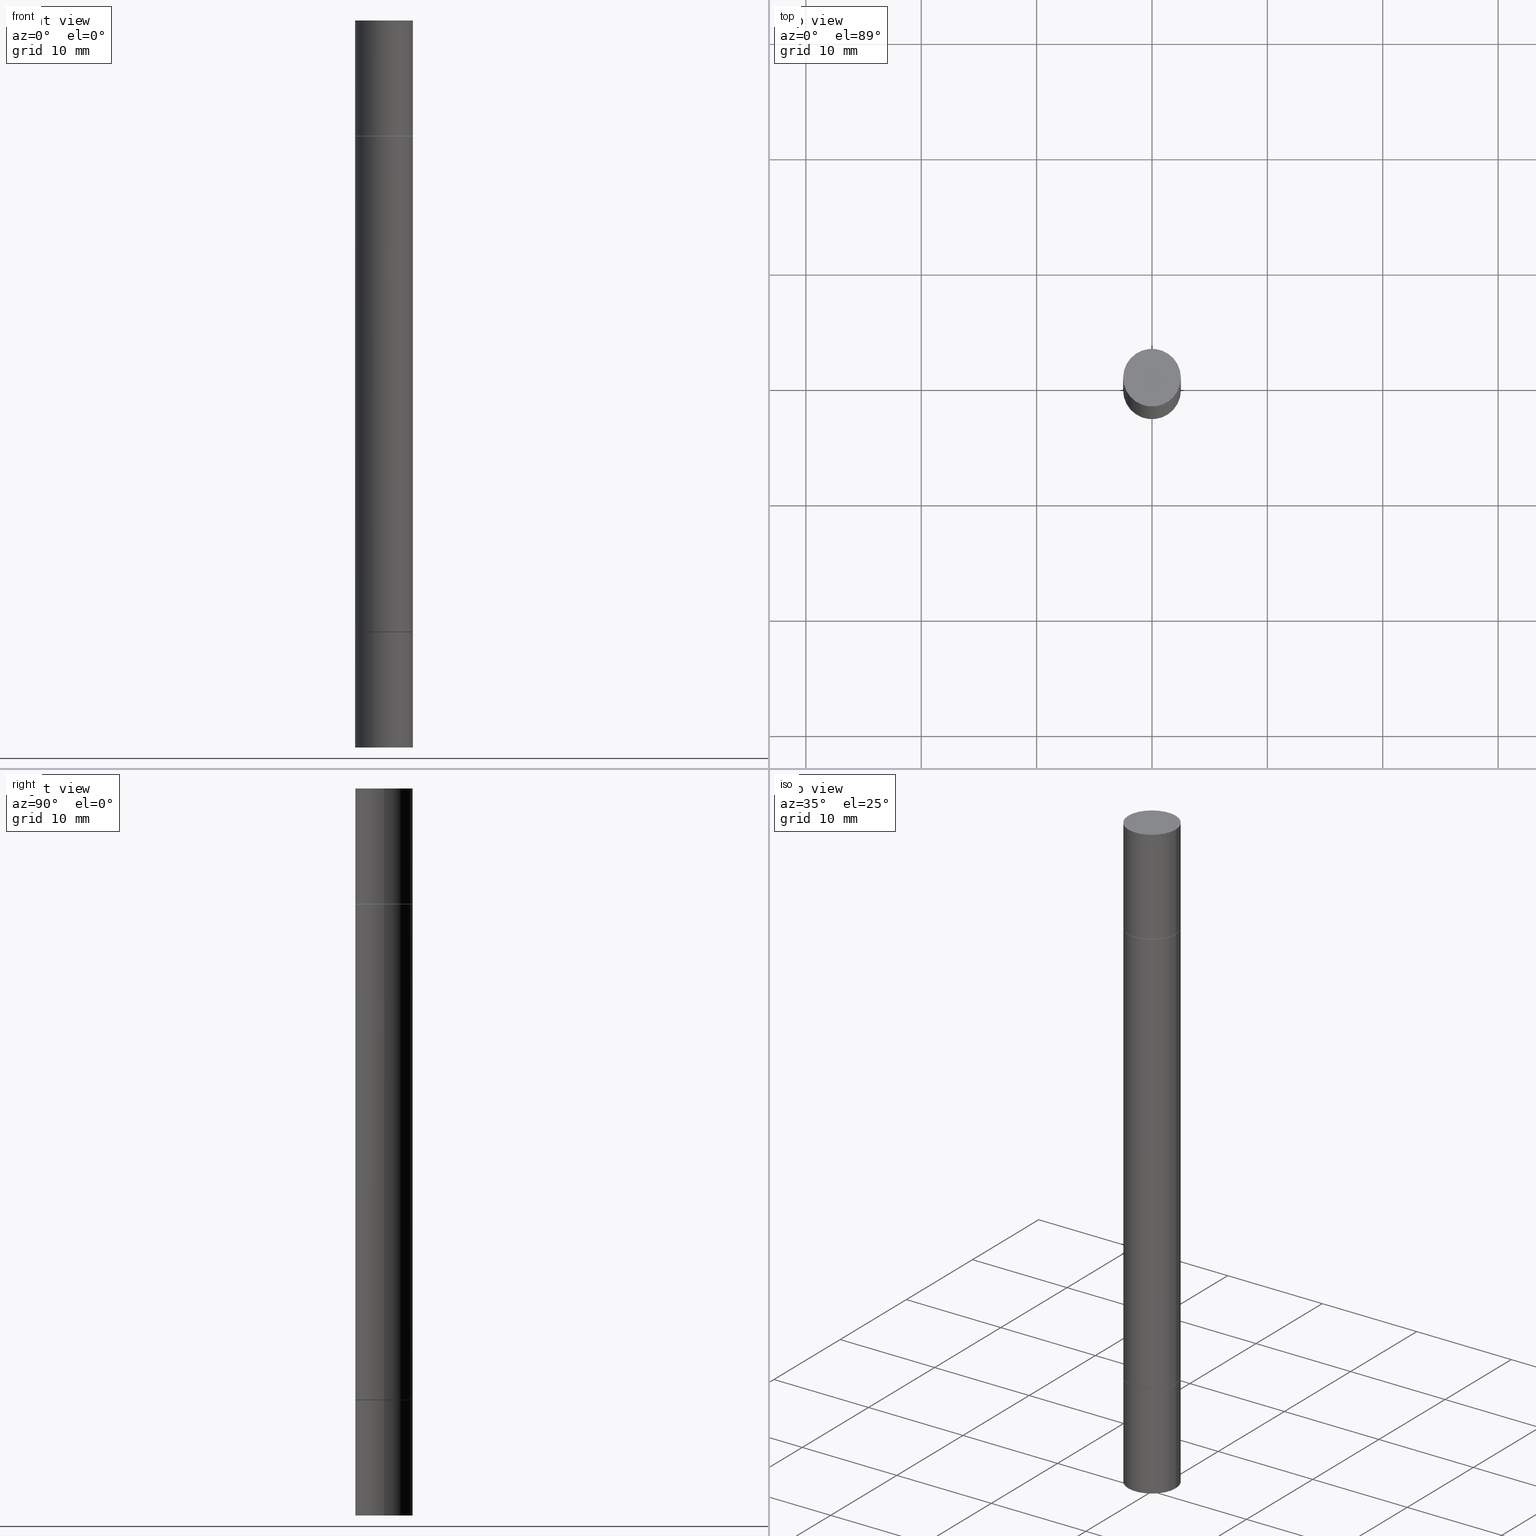
[diagram: canonical four-view strip — front | top / right | iso, engineering-drawing reading convention]
A machine part, canonical four-view strip (front | top / right | iso — engineering-drawing reading convention). The complete STEP part file that produces these views, byte-faithful:
ISO-10303-21;
HEADER;
FILE_DESCRIPTION (( 'STEP AP203' ),
    '1' );
FILE_NAME ('41437.STEP',
    '2024-03-04T15:44:52',
    ( '' ),
    ( '' ),
    'SwSTEP 2.0',
    'SolidWorks 2023',
    '' );
FILE_SCHEMA (( 'CONFIG_CONTROL_DESIGN' ));
ENDSEC;

DATA;
#1 = AXIS2_PLACEMENT_3D ( 'NONE', #375, #435, #589 ) ;
#2 = CIRCLE ( 'NONE', #477, 0.09844999999999999585 ) ;
#3 = PERSON_AND_ORGANIZATION ( #387, #568 ) ;
#4 = DESIGN_CONTEXT ( 'detailed design', #158, 'design' ) ;
#5 = DIRECTION ( 'NONE',  ( -2.445468806185136597E-29, 3.491481338843145583E-15, 1.000000000000000000 ) ) ;
#6 = SECURITY_CLASSIFICATION_LEVEL ( 'unclassified' ) ;
#7 = PLANE ( 'NONE',  #484 ) ;
#8 = PLANE ( 'NONE',  #26 ) ;
#9 = EDGE_CURVE ( 'NONE', #657, #674, #577, .T. ) ;
#10 = AXIS2_PLACEMENT_3D ( 'NONE', #541, #643, #272 ) ;
#11 = CIRCLE ( 'NONE', #578, 0.09844999999999999585 ) ;
#12 = CARTESIAN_POINT ( 'NONE',  ( 6.065496279980994755E-29, 1.747461519580534218E-18, 5.463695987328526437E-16 ) ) ;
#13 = PRODUCT ( '41437', '41437', '', ( #656 ) ) ;
#14 = DIRECTION ( 'NONE',  ( 1.000000000000000000, -6.982962677686266711E-15, 0.000000000000000000 ) ) ;
#15 = EDGE_LOOP ( 'NONE', ( #493, #344 ) ) ;
#16 = FACE_OUTER_BOUND ( 'NONE', #126, .T. ) ;
#17 = CARTESIAN_POINT ( 'NONE',  ( 5.102715210985907397E-29, -1.373403493508342672E-15, -0.3936999999999993838 ) ) ;
#18 = EDGE_CURVE ( 'NONE', #595, #455, #147, .T. ) ;
#19 = EDGE_LOOP ( 'NONE', ( #539, #302, #329, #417 ) ) ;
#20 = DIRECTION ( 'NONE',  ( 1.000000000000000000, -6.982962677686266711E-15, 4.876176775795936353E-29 ) ) ;
#21 = ADVANCED_FACE ( 'NONE', ( #16 ), #222, .T. ) ;
#22 = CARTESIAN_POINT ( 'NONE',  ( -0.09844999999999985707, -7.986252598371625706E-15, -2.480299999999999727 ) ) ;
#23 = ORIENTED_EDGE ( 'NONE', *, *, #389, .T. ) ;
#24 = VECTOR ( 'NONE', #139, 39.37007874015748143 ) ;
#25 = CARTESIAN_POINT ( 'NONE',  ( 0.000000000000000000, 0.000000000000000000, 0.000000000000000000 ) ) ;
#26 = AXIS2_PLACEMENT_3D ( 'NONE', #547, #464, #187 ) ;
#27 = CARTESIAN_POINT ( 'NONE',  ( -0.09844999999999999585, -7.986252598371625706E-15, -2.480299999999999727 ) ) ;
#28 = EDGE_LOOP ( 'NONE', ( #309, #34, #512, #287 ) ) ;
#29 = CARTESIAN_POINT ( 'NONE',  ( 0.000000000000000000, 0.000000000000000000, -1.240149999999999864 ) ) ;
#30 = CARTESIAN_POINT ( 'NONE',  ( 0.09744999999999999496, -2.053893206448869020E-15, -0.3936999999999993838 ) ) ;
#31 = ORIENTED_EDGE ( 'NONE', *, *, #597, .F. ) ;
#32 = DIRECTION ( 'NONE',  ( -2.445468806185136597E-29, -3.492890411551752677E-15, -1.000000000000000000 ) ) ;
#33 = PERSON_AND_ORGANIZATION ( #387, #568 ) ;
#34 = ORIENTED_EDGE ( 'NONE', *, *, #525, .T. ) ;
#35 = CARTESIAN_POINT ( 'NONE',  ( 5.102715210985907397E-29, -1.373403493508342672E-15, -0.3936999999999993838 ) ) ;
#36 = CONICAL_SURFACE ( 'NONE', #440, 0.09744999999999999496, 0.7853981633974227439 ) ;
#37 = AXIS2_PLACEMENT_3D ( 'NONE', #644, #445, #543 ) ;
#38 = EDGE_LOOP ( 'NONE', ( #665, #624 ) ) ;
#39 = APPLICATION_PROTOCOL_DEFINITION ( 'international standard', 'config_control_design', 1994, #158 ) ;
#40 = DIMENSIONAL_EXPONENTS ( 1.000000000000000000, 0.000000000000000000, 0.000000000000000000, 0.000000000000000000, 0.000000000000000000, 0.000000000000000000, 0.000000000000000000 ) ;
#41 = VERTEX_POINT ( 'NONE', #531 ) ;
#42 = CARTESIAN_POINT ( 'NONE',  ( 5.102715210985907397E-29, -7.285324961630108994E-15, -2.086600000000000232 ) ) ;
#43 = CARTESIAN_POINT ( 'NONE',  ( 0.09844999999999999585, -9.349141301870445276E-15, -2.480299999999999727 ) ) ;
#44 = ORIENTED_EDGE ( 'NONE', *, *, #155, .T. ) ;
#45 = EDGE_CURVE ( 'NONE', #398, #462, #175, .T. ) ;
#46 = DIRECTION ( 'NONE',  ( 0.7071067811865294761, -2.468850131082068128E-15, 0.7071067811865655584 ) ) ;
#47 = MANIFOLD_SOLID_BREP ( 'Mirror1[3]', #273 ) ;
#48 = ORIENTED_EDGE ( 'NONE', *, *, #488, .T. ) ;
#49 = DIRECTION ( 'NONE',  ( -2.445468806185136877E-29, -3.492890411551753071E-15, -1.000000000000000000 ) ) ;
#50 = AXIS2_PLACEMENT_3D ( 'NONE', #370, #227, #322 ) ;
#51 = COORDINATED_UNIVERSAL_TIME_OFFSET ( 5, 0, .BEHIND. ) ;
#52 = AXIS2_PLACEMENT_3D ( 'NONE', #668, #200, #128 ) ;
#53 = ORIENTED_EDGE ( 'NONE', *, *, #226, .F. ) ;
#54 = CARTESIAN_POINT ( 'NONE',  ( -0.09844999999999999585, -7.986252598371625706E-15, -2.480299999999999727 ) ) ;
#55 = EDGE_CURVE ( 'NONE', #654, #390, #670, .T. ) ;
#56 = DIRECTION ( 'NONE',  ( 0.7071067811865294761, -7.407546758114183859E-15, -0.7071067811865655584 ) ) ;
#57 = UNCERTAINTY_MEASURE_WITH_UNIT (LENGTH_MEASURE( 1.000000000000000082E-05 ), #610, 'distance_accuracy_value', 'NONE');
#58 = EDGE_CURVE ( 'NONE', #85, #446, #311, .T. ) ;
#59 = MANIFOLD_SOLID_BREP ( 'Mirror1[4]', #635 ) ;
#60 = APPROVAL_ROLE ( '' ) ;
#61 = AXIS2_PLACEMENT_3D ( 'NONE', #414, #355, #634 ) ;
#62 = PRODUCT_RELATED_PRODUCT_CATEGORY ( 'detail', '', ( #13 ) ) ;
#63 = LINE ( 'NONE', #368, #103 ) ;
#64 = FACE_OUTER_BOUND ( 'NONE', #602, .T. ) ;
#65 = PLANE ( 'NONE',  #555 ) ;
#66 = DIRECTION ( 'NONE',  ( -1.000000000000000000, 6.982962677686265922E-15, -9.839502134516470631E-33 ) ) ;
#67 = AXIS2_PLACEMENT_3D ( 'NONE', #546, #377, #381 ) ;
#68 = ORIENTED_EDGE ( 'NONE', *, *, #263, .T. ) ;
#69 = VECTOR ( 'NONE', #220, 39.37007874015748143 ) ;
#70 = APPROVAL_PERSON_ORGANIZATION ( #470, #396, #60 ) ;
#71 = FACE_OUTER_BOUND ( 'NONE', #412, .T. ) ;
#72 = DIRECTION ( 'NONE',  ( -0.000000000000000000, -3.492185875197449130E-15, -1.000000000000000000 ) ) ;
#73 = FACE_OUTER_BOUND ( 'NONE', #28, .T. ) ;
#74 = CARTESIAN_POINT ( 'NONE',  ( 5.100269742179721794E-29, -1.376896383919896194E-15, -0.3946999999999994957 ) ) ;
#75 = VERTEX_POINT ( 'NONE', #116 ) ;
#76 = CARTESIAN_POINT ( 'NONE',  ( 0.09844999999999985707, -9.349141301870445276E-15, -2.480299999999999727 ) ) ;
#77 = CARTESIAN_POINT ( 'NONE',  ( -0.09845000000000000973, -3.654544554485714347E-15, -2.085600000000000342 ) ) ;
#78 = EDGE_LOOP ( 'NONE', ( #23, #620 ) ) ;
#79 = VECTOR ( 'NONE', #436, 39.37007874015748143 ) ;
#80 = DIRECTION ( 'NONE',  ( -0.7071067811865294761, 7.493145998870289474E-15, 0.7071067811865655584 ) ) ;
#81 = DATE_AND_TIME ( #339, #341 ) ;
#82 = ORIENTED_EDGE ( 'NONE', *, *, #18, .F. ) ;
#83 = DIRECTION ( 'NONE',  ( -2.438088387897959769E-29, -3.492890411551753071E-15, -1.000000000000000000 ) ) ;
#84 = PERSON_AND_ORGANIZATION ( #387, #568 ) ;
#85 = VERTEX_POINT ( 'NONE', #169 ) ;
#86 = ADVANCED_FACE ( 'NONE', ( #71 ), #65, .F. ) ;
#87 = DIRECTION ( 'NONE',  ( 2.445468806185136597E-29, 3.492890411551752677E-15, 1.000000000000000000 ) ) ;
#88 = DATE_AND_TIME ( #141, #93 ) ;
#89 = ORIENTED_EDGE ( 'NONE', *, *, #140, .T. ) ;
#90 = LINE ( 'NONE', #295, #24 ) ;
#91 = AXIS2_PLACEMENT_3D ( 'NONE', #130, #454, #450 ) ;
#92 = VECTOR ( 'NONE', #56, 39.37007874015748143 ) ;
#93 = LOCAL_TIME ( 10, 44, 52.00000000000000000, #507 ) ;
#94 = EDGE_CURVE ( 'NONE', #446, #85, #382, .T. ) ;
#95 = CARTESIAN_POINT ( 'NONE',  ( 0.09845000000000000973, -2.064369059538107571E-15, -0.3946999999999994957 ) ) ;
#96 = EDGE_LOOP ( 'NONE', ( #352, #241, #290, #591 ) ) ;
#97 = DIRECTION ( 'NONE',  ( 1.000000000000000000, -6.982962677686265922E-15, 0.000000000000000000 ) ) ;
#98 = ORIENTED_EDGE ( 'NONE', *, *, #197, .F. ) ;
#99 = ORIENTED_EDGE ( 'NONE', *, *, #132, .F. ) ;
#100 = DIRECTION ( 'NONE',  ( -2.445468806185136597E-29, 3.491481338843145583E-15, 1.000000000000000000 ) ) ;
#101 = VERTEX_POINT ( 'NONE', #317 ) ;
#102 = FACE_OUTER_BOUND ( 'NONE', #15, .T. ) ;
#103 = VECTOR ( 'NONE', #581, 39.37007874015748143 ) ;
#104 = COORDINATED_UNIVERSAL_TIME_OFFSET ( 5, 0, .BEHIND. ) ;
#105 = PRODUCT_DEFINITION_FORMATION_WITH_SPECIFIED_SOURCE ( 'ANY', '', #13, .NOT_KNOWN. ) ;
#106 = DIRECTION ( 'NONE',  ( 1.000000000000000000, -6.982962677686265922E-15, 0.000000000000000000 ) ) ;
#107 = ORIENTED_EDGE ( 'NONE', *, *, #58, .T. ) ;
#108 = ADVANCED_FACE ( 'NONE', ( #485 ), #427, .T. ) ;
#109 = DIRECTION ( 'NONE',  ( 1.000000000000000000, -6.982962677686264344E-15, 0.000000000000000000 ) ) ;
#110 = ADVANCED_FACE ( 'NONE', ( #480 ), #173, .T. ) ;
#111 = AXIS2_PLACEMENT_3D ( 'NONE', #553, #247, #612 ) ;
#112 = CIRCLE ( 'NONE', #636, 0.09844999999999999585 ) ;
#113 = ADVANCED_FACE ( 'NONE', ( #592 ), #216, .F. ) ;
#114 = CARTESIAN_POINT ( 'NONE',  ( 6.874726756182639346E-16, 0.09844999999999862195, -0.3936999999999999389 ) ) ;
#115 = CARTESIAN_POINT ( 'NONE',  ( 0.09845000000000000973, -2.064369059538107571E-15, -0.3946999999999994957 ) ) ;
#116 = CARTESIAN_POINT ( 'NONE',  ( -0.09744999999999999496, -6.587602611283669490E-15, -2.086600000000000232 ) ) ;
#117 = DIRECTION ( 'NONE',  ( -2.445468806185136597E-29, 3.491481338843145583E-15, 1.000000000000000000 ) ) ;
#118 = ADVANCED_FACE ( 'NONE', ( #73 ), #282, .T. ) ;
#119 = DIRECTION ( 'NONE',  ( 2.445468806185136597E-29, 3.492890411551752677E-15, 1.000000000000000000 ) ) ;
#120 = DIRECTION ( 'NONE',  ( 1.000000000000000000, -6.982962677686265922E-15, 0.000000000000000000 ) ) ;
#121 = CONICAL_SURFACE ( 'NONE', #91, 0.09744999999999999496, 0.7853981633974227439 ) ;
#122 = ORIENTED_EDGE ( 'NONE', *, *, #544, .T. ) ;
#123 = CIRCLE ( 'NONE', #212, 0.09844999999999985707 ) ;
#124 = DIRECTION ( 'NONE',  ( 2.438088387897959769E-29, 3.492890411551753071E-15, 1.000000000000000000 ) ) ;
#125 = DIRECTION ( 'NONE',  ( 2.445468806185136597E-29, 3.492890411551752677E-15, 1.000000000000000000 ) ) ;
#126 = EDGE_LOOP ( 'NONE', ( #259, #179, #457, #393 ) ) ;
#127 = CARTESIAN_POINT ( 'NONE',  ( 0.000000000000000000, -8.661668626252231138E-15, -2.480299999999999727 ) ) ;
#128 = DIRECTION ( 'NONE',  ( 1.000000000000000000, -6.982962677686264344E-15, 0.000000000000000000 ) ) ;
#129 = ORIENTED_EDGE ( 'NONE', *, *, #528, .F. ) ;
#130 = CARTESIAN_POINT ( 'NONE',  ( 5.102715210985907397E-29, -7.285324961630108994E-15, -2.086600000000000232 ) ) ;
#131 = DIRECTION ( 'NONE',  ( 1.000000000000000000, -6.982962677686264344E-15, 0.000000000000000000 ) ) ;
#132 = EDGE_CURVE ( 'NONE', #522, #557, #420, .T. ) ;
#133 = ORIENTED_EDGE ( 'NONE', *, *, #335, .T. ) ;
#134 = AXIS2_PLACEMENT_3D ( 'NONE', #494, #320, #20 ) ;
#135 = AXIS2_PLACEMENT_3D ( 'NONE', #321, #459, #254 ) ;
#136 = DIRECTION ( 'NONE',  ( 0.000000000000000000, 3.492185875197449524E-15, 1.000000000000000000 ) ) ;
#137 = FACE_OUTER_BOUND ( 'NONE', #19, .T. ) ;
#138 = VERTEX_POINT ( 'NONE', #632 ) ;
#139 = DIRECTION ( 'NONE',  ( -0.7071067811865294761, 2.381258160591079573E-15, -0.7071067811865655584 ) ) ;
#140 = EDGE_CURVE ( 'NONE', #446, #253, #63, .T. ) ;
#141 = CALENDAR_DATE ( 2024, 4, 3 ) ;
#142 = VERTEX_POINT ( 'NONE', #426 ) ;
#143 = PLANE ( 'NONE',  #451 ) ;
#144 = CC_DESIGN_PERSON_AND_ORGANIZATION_ASSIGNMENT ( #527, #533, ( #105 ) ) ;
#145 = EDGE_LOOP ( 'NONE', ( #434, #107 ) ) ;
#146 = DIRECTION ( 'NONE',  ( -1.000000000000000000, 6.982962677686265922E-15, -9.839502134516470631E-33 ) ) ;
#147 = CIRCLE ( 'NONE', #219, 0.09844999999999999585 ) ;
#148 = VERTEX_POINT ( 'NONE', #162 ) ;
#149 = ADVANCED_FACE ( 'NONE', ( #482 ), #7, .T. ) ;
#150 = CARTESIAN_POINT ( 'NONE',  ( 5.102715210985907397E-29, -7.285324961630108994E-15, -2.086600000000000232 ) ) ;
#151 = ORIENTED_EDGE ( 'NONE', *, *, #567, .T. ) ;
#152 = CYLINDRICAL_SURFACE ( 'NONE', #157, 0.09844999999999985707 ) ;
#153 = DATE_AND_TIME ( #207, #606 ) ;
#154 = CARTESIAN_POINT ( 'NONE',  ( 5.102715210985907397E-29, -7.285324961630108994E-15, -2.086600000000000232 ) ) ;
#155 = EDGE_CURVE ( 'NONE', #75, #138, #521, .T. ) ;
#156 = VECTOR ( 'NONE', #497, 39.37007874015748143 ) ;
#157 = AXIS2_PLACEMENT_3D ( 'NONE', #251, #474, #209 ) ;
#158 = APPLICATION_CONTEXT ( 'configuration controlled 3d designs of mechanical parts and assemblies' ) ;
#159 = CARTESIAN_POINT ( 'NONE',  ( 5.102715210985907397E-29, -1.373403493508342672E-15, -0.3936999999999993838 ) ) ;
#160 = CC_DESIGN_PERSON_AND_ORGANIZATION_ASSIGNMENT ( #33, #671, ( #13 ) ) ;
#161 = ORIENTED_EDGE ( 'NONE', *, *, #94, .F. ) ;
#162 = CARTESIAN_POINT ( 'NONE',  ( -0.09844999999999999585, -1.041198811377363761E-17, -0.3936999999999993838 ) ) ;
#163 = CIRCLE ( 'NONE', #135, 0.09844999999999999585 ) ;
#164 = CARTESIAN_POINT ( 'NONE',  ( 6.874726756182734996E-16, 0.09844999999999133611, -2.480300000000001059 ) ) ;
#165 = AXIS2_PLACEMENT_3D ( 'NONE', #357, #348, #191 ) ;
#166 = ADVANCED_FACE ( 'NONE', ( #180 ), #121, .T. ) ;
#167 = DIRECTION ( 'NONE',  ( 2.445468806185136597E-29, 3.492890411551752677E-15, 1.000000000000000000 ) ) ;
#168 = CYLINDRICAL_SURFACE ( 'NONE', #441, 0.09844999999999999585 ) ;
#169 = CARTESIAN_POINT ( 'NONE',  ( -0.09844999999999999585, -1.041198811377375779E-17, 5.463695987328551089E-16 ) ) ;
#170 = PRODUCT_DEFINITION_SHAPE ( 'NONE', 'NONE',  #181 ) ;
#171 = DIRECTION ( 'NONE',  ( 1.000000000000000000, -6.982962677686265922E-15, 0.000000000000000000 ) ) ;
#172 = ORIENTED_EDGE ( 'NONE', *, *, #413, .T. ) ;
#173 = CYLINDRICAL_SURFACE ( 'NONE', #67, 0.09844999999999985707 ) ;
#174 = CARTESIAN_POINT ( 'NONE',  ( 5.102715210985907397E-29, -1.373403493508342672E-15, -0.3936999999999993838 ) ) ;
#175 = CIRCLE ( 'NONE', #1, 0.09845000000000000973 ) ;
#176 = ORIENTED_EDGE ( 'NONE', *, *, #672, .F. ) ;
#177 = CARTESIAN_POINT ( 'NONE',  ( -0.09844999999999999585, 6.995293233558186035E-16, -4.842691596355954042E-30 ) ) ;
#178 = DIRECTION ( 'NONE',  ( -2.445468806185136597E-29, -3.492890411551752677E-15, -1.000000000000000000 ) ) ;
#179 = ORIENTED_EDGE ( 'NONE', *, *, #559, .T. ) ;
#180 = FACE_OUTER_BOUND ( 'NONE', #566, .T. ) ;
#181 = PRODUCT_DEFINITION ( 'UNKNOWN', '', #105, #4 ) ;
#182 = DIRECTION ( 'NONE',  ( -2.445468806185136877E-29, -3.492890411551753071E-15, -1.000000000000000000 ) ) ;
#183 = EDGE_LOOP ( 'NONE', ( #508, #161, #89, #562 ) ) ;
#184 = ADVANCED_FACE ( 'NONE', ( #236 ), #143, .F. ) ;
#185 = CYLINDRICAL_SURFACE ( 'NONE', #211, 0.09844999999999985707 ) ;
#186 = VERTEX_POINT ( 'NONE', #563 ) ;
#187 = DIRECTION ( 'NONE',  ( 1.000000000000000000, -6.982962677686265922E-15, 9.839502134516470631E-33 ) ) ;
#188 = EDGE_CURVE ( 'NONE', #462, #398, #564, .T. ) ;
#189 = AXIS2_PLACEMENT_3D ( 'NONE', #651, #117, #598 ) ;
#190 = DIRECTION ( 'NONE',  ( -2.445468806185136597E-29, 3.491481338843145583E-15, 1.000000000000000000 ) ) ;
#191 = DIRECTION ( 'NONE',  ( 1.000000000000000000, 0.000000000000000000, 0.000000000000000000 ) ) ;
#192 = ORIENTED_EDGE ( 'NONE', *, *, #535, .T. ) ;
#193 = EDGE_CURVE ( 'NONE', #75, #522, #444, .T. ) ;
#194 = PLANE ( 'NONE',  #499 ) ;
#195 = EDGE_LOOP ( 'NONE', ( #661, #239 ) ) ;
#196 = DIRECTION ( 'NONE',  ( 2.445468806185136597E-29, 3.492890411551752677E-15, 1.000000000000000000 ) ) ;
#197 = EDGE_CURVE ( 'NONE', #545, #390, #90, .T. ) ;
#198 = DIRECTION ( 'NONE',  ( -2.445468806185136597E-29, -3.492890411551752677E-15, -1.000000000000000000 ) ) ;
#199 = ORIENTED_EDGE ( 'NONE', *, *, #559, .F. ) ;
#200 = DIRECTION ( 'NONE',  ( -2.445468806185136597E-29, -3.492890411551752677E-15, -1.000000000000000000 ) ) ;
#201 = AXIS2_PLACEMENT_3D ( 'NONE', #150, #260, #373 ) ;
#202 = AXIS2_PLACEMENT_3D ( 'NONE', #362, #616, #576 ) ;
#203 = DIRECTION ( 'NONE',  ( 1.000000000000000000, -6.982962677686265922E-15, 0.000000000000000000 ) ) ;
#204 = VERTEX_POINT ( 'NONE', #399 ) ;
#205 = CARTESIAN_POINT ( 'NONE',  ( 6.065496279980994755E-29, 1.747461519580534218E-18, 5.463695987328526437E-16 ) ) ;
#206 = EDGE_CURVE ( 'NONE', #142, #595, #648, .T. ) ;
#207 = CALENDAR_DATE ( 2024, 4, 3 ) ;
#208 = VERTEX_POINT ( 'NONE', #345 ) ;
#209 = DIRECTION ( 'NONE',  ( 1.000000000000000000, -6.982962677686276177E-15, 0.000000000000000000 ) ) ;
#210 = DIRECTION ( 'NONE',  ( 1.000000000000000000, -6.982962677686264344E-15, 0.000000000000000000 ) ) ;
#211 = AXIS2_PLACEMENT_3D ( 'NONE', #127, #32, #242 ) ;
#212 = AXIS2_PLACEMENT_3D ( 'NONE', #653, #72, #332 ) ;
#213 = APPROVAL_PERSON_ORGANIZATION ( #3, #575, #366 ) ;
#214 = ADVANCED_FACE ( 'NONE', ( #596 ), #561, .F. ) ;
#215 = SHAPE_DEFINITION_REPRESENTATION ( #170, #308 ) ;
#216 = PLANE ( 'NONE',  #232 ) ;
#217 = ADVANCED_FACE ( 'NONE', ( #391 ), #338, .T. ) ;
#218 = CARTESIAN_POINT ( 'NONE',  ( 6.874726756182734996E-16, 0.09845000000000000973, 5.463695987328526437E-16 ) ) ;
#219 = AXIS2_PLACEMENT_3D ( 'NONE', #428, #637, #633 ) ;
#220 = DIRECTION ( 'NONE',  ( -2.445468806185136877E-29, -3.492890411551753071E-15, -1.000000000000000000 ) ) ;
#221 = CC_DESIGN_APPROVAL ( #406, ( #181 ) ) ;
#222 = CYLINDRICAL_SURFACE ( 'NONE', #50, 0.09844999999999985707 ) ;
#223 = CARTESIAN_POINT ( 'NONE',  ( 5.102715210985907397E-29, -1.373403493508342672E-15, -0.3936999999999993838 ) ) ;
#224 = ORIENTED_EDGE ( 'NONE', *, *, #528, .T. ) ;
#225 = APPLICATION_CONTEXT ( 'configuration controlled 3d designs of mechanical parts and assemblies' ) ;
#226 = EDGE_CURVE ( 'NONE', #557, #522, #628, .T. ) ;
#227 = DIRECTION ( 'NONE',  ( -2.445468806185136597E-29, -3.492890411551752677E-15, -1.000000000000000000 ) ) ;
#228 = DIRECTION ( 'NONE',  ( 2.445468806185136597E-29, 3.492890411551752677E-15, 1.000000000000000000 ) ) ;
#229 = ORIENTED_EDGE ( 'NONE', *, *, #479, .F. ) ;
#230 = DIRECTION ( 'NONE',  ( 1.000000000000000000, -6.982962677686264344E-15, 0.000000000000000000 ) ) ;
#231 = CARTESIAN_POINT ( 'NONE',  ( 0.09844999999999985707, -9.349141301870445276E-15, -2.480299999999999727 ) ) ;
#232 = AXIS2_PLACEMENT_3D ( 'NONE', #114, #124, #330 ) ;
#233 = ORIENTED_EDGE ( 'NONE', *, *, #306, .T. ) ;
#234 = VECTOR ( 'NONE', #49, 39.37007874015748143 ) ;
#235 = CC_DESIGN_DATE_AND_TIME_ASSIGNMENT ( #88, #296, ( #181 ) ) ;
#236 = FACE_OUTER_BOUND ( 'NONE', #471, .T. ) ;
#237 = ADVANCED_FACE ( 'NONE', ( #513 ), #36, .T. ) ;
#238 = CARTESIAN_POINT ( 'NONE',  ( 5.102715210985907397E-29, -1.373403493508342672E-15, -0.3936999999999993838 ) ) ;
#239 = ORIENTED_EDGE ( 'NONE', *, *, #544, .F. ) ;
#240 = DIRECTION ( 'NONE',  ( -2.445468806185136877E-29, -3.492890411551753071E-15, -1.000000000000000000 ) ) ;
#241 = ORIENTED_EDGE ( 'NONE', *, *, #197, .T. ) ;
#242 = DIRECTION ( 'NONE',  ( 1.000000000000000000, -6.982962677686276177E-15, 0.000000000000000000 ) ) ;
#243 = CC_DESIGN_PERSON_AND_ORGANIZATION_ASSIGNMENT ( #627, #520, ( #105 ) ) ;
#244 = ORIENTED_EDGE ( 'NONE', *, *, #430, .F. ) ;
#245 = AXIS2_PLACEMENT_3D ( 'NONE', #25, #190, #509 ) ;
#246 = CIRCLE ( 'NONE', #354, 0.09744999999999999496 ) ;
#247 = DIRECTION ( 'NONE',  ( -2.445468806185136597E-29, 3.491481338843145583E-15, 1.000000000000000000 ) ) ;
#248 = ORIENTED_EDGE ( 'NONE', *, *, #367, .F. ) ;
#249 = LINE ( 'NONE', #43, #258 ) ;
#250 = ORIENTED_EDGE ( 'NONE', *, *, #226, .T. ) ;
#251 = CARTESIAN_POINT ( 'NONE',  ( 0.000000000000000000, -8.661668626252231138E-15, -2.480299999999999727 ) ) ;
#252 = CARTESIAN_POINT ( 'NONE',  ( -0.09744999999999999496, -7.048479636255069781E-16, -0.3936999999999993838 ) ) ;
#253 = VERTEX_POINT ( 'NONE', #506 ) ;
#254 = DIRECTION ( 'NONE',  ( 1.000000000000000000, -6.982962677686266711E-15, 0.000000000000000000 ) ) ;
#255 = EDGE_LOOP ( 'NONE', ( #667, #133, #281, #360 ) ) ;
#256 = DIRECTION ( 'NONE',  ( 2.445468806185136597E-29, 3.492890411551752677E-15, 1.000000000000000000 ) ) ;
#257 = ADVANCED_FACE ( 'NONE', ( #558 ), #194, .F. ) ;
#258 = VECTOR ( 'NONE', #517, 39.37007874015748143 ) ;
#259 = ORIENTED_EDGE ( 'NONE', *, *, #460, .F. ) ;
#260 = DIRECTION ( 'NONE',  ( -2.445468806185136597E-29, 3.491481338843145583E-15, 1.000000000000000000 ) ) ;
#261 = CARTESIAN_POINT ( 'NONE',  ( -0.09844999999999999585, -1.041198811377363761E-17, -0.3936999999999993838 ) ) ;
#262 = COORDINATED_UNIVERSAL_TIME_OFFSET ( 5, 0, .BEHIND. ) ;
#263 = EDGE_CURVE ( 'NONE', #654, #557, #652, .T. ) ;
#264 = AXIS2_PLACEMENT_3D ( 'NONE', #394, #87, #300 ) ;
#265 = AXIS2_PLACEMENT_3D ( 'NONE', #42, #519, #97 ) ;
#266 = MANIFOLD_SOLID_BREP ( 'Mirror1[1]', #298 ) ;
#267 = DIRECTION ( 'NONE',  ( -2.445468806185136597E-29, -3.492890411551752677E-15, -1.000000000000000000 ) ) ;
#268 = APPROVAL_DATE_TIME ( #481, #575 ) ;
#269 = CARTESIAN_POINT ( 'NONE',  ( 5.102715210985907397E-29, -7.285324961630108994E-15, -2.086600000000000232 ) ) ;
#270 = MANIFOLD_SOLID_BREP ( 'Body-Move/Copy2[1]', #604 ) ;
#271 = LINE ( 'NONE', #27, #69 ) ;
#272 = DIRECTION ( 'NONE',  ( 1.000000000000000000, -6.982962677686266711E-15, 0.000000000000000000 ) ) ;
#273 = CLOSED_SHELL ( 'NONE', ( #458, #356, #439, #554 ) ) ;
#274 = CIRCLE ( 'NONE', #629, 0.09844999999999999585 ) ;
#275 = CARTESIAN_POINT ( 'NONE',  ( 0.09844999999999999585, -6.857252140986324187E-16, 5.463695987328526437E-16 ) ) ;
#276 =( GEOMETRIC_REPRESENTATION_CONTEXT ( 3 ) GLOBAL_UNCERTAINTY_ASSIGNED_CONTEXT ( ( #57 ) ) GLOBAL_UNIT_ASSIGNED_CONTEXT ( ( #610, #664, #456 ) ) REPRESENTATION_CONTEXT ( 'NONE', 'WORKASPACE' ) );
#277 = ORIENTED_EDGE ( 'NONE', *, *, #188, .T. ) ;
#278 = DIRECTION ( 'NONE',  ( 1.000000000000000000, -6.982962677686266711E-15, 0.000000000000000000 ) ) ;
#279 = CARTESIAN_POINT ( 'NONE',  ( 5.102715210985907397E-29, -1.373403493508342672E-15, -0.3936999999999993838 ) ) ;
#280 = MANIFOLD_SOLID_BREP ( 'Combine1', #353 ) ;
#281 = ORIENTED_EDGE ( 'NONE', *, *, #389, .F. ) ;
#282 = CYLINDRICAL_SURFACE ( 'NONE', #134, 0.09844999999999999585 ) ;
#283 = CARTESIAN_POINT ( 'NONE',  ( 0.09844999999999999585, -7.972797637248321554E-15, -2.086600000000000232 ) ) ;
#284 = DIRECTION ( 'NONE',  ( -1.000000000000000000, 6.982962677686265922E-15, -4.876176775795935793E-29 ) ) ;
#285 = FACE_OUTER_BOUND ( 'NONE', #425, .T. ) ;
#286 = AXIS2_PLACEMENT_3D ( 'NONE', #154, #100, #307 ) ;
#287 = ORIENTED_EDGE ( 'NONE', *, *, #400, .F. ) ;
#288 = CARTESIAN_POINT ( 'NONE',  ( 0.09844999999999999585, -6.874726756182129545E-16, 4.800596035771099214E-30 ) ) ;
#289 = APPROVAL_DATE_TIME ( #81, #406 ) ;
#290 = ORIENTED_EDGE ( 'NONE', *, *, #460, .T. ) ;
#291 = DIRECTION ( 'NONE',  ( -1.000000000000000000, 6.982962677686265922E-15, -9.839502134516470631E-33 ) ) ;
#292 = ADVANCED_FACE ( 'NONE', ( #342 ), #185, .T. ) ;
#293 = PERSON_AND_ORGANIZATION_ROLE ( 'creator' ) ;
#294 = EDGE_LOOP ( 'NONE', ( #324, #622, #453, #574 ) ) ;
#295 = CARTESIAN_POINT ( 'NONE',  ( -0.09744999999999999496, -7.048479636255069781E-16, -0.3936999999999993838 ) ) ;
#296 = DATE_TIME_ROLE ( 'creation_date' ) ;
#297 = ORIENTED_EDGE ( 'NONE', *, *, #380, .F. ) ;
#298 = CLOSED_SHELL ( 'NONE', ( #316, #108, #257, #214, #433, #292 ) ) ;
#299 = CIRCLE ( 'NONE', #189, 0.09844999999999999585 ) ;
#300 = DIRECTION ( 'NONE',  ( 1.000000000000000000, -6.982962677686266711E-15, 0.000000000000000000 ) ) ;
#301 = APPLICATION_PROTOCOL_DEFINITION ( 'international standard', 'config_control_design', 1994, #225 ) ;
#302 = ORIENTED_EDGE ( 'NONE', *, *, #422, .T. ) ;
#303 = CARTESIAN_POINT ( 'NONE',  ( -0.09845000000000000973, -7.014803560392874095E-16, -0.3946999999999994957 ) ) ;
#304 = FACE_OUTER_BOUND ( 'NONE', #183, .T. ) ;
#305 = ORIENTED_EDGE ( 'NONE', *, *, #372, .F. ) ;
#306 = EDGE_CURVE ( 'NONE', #41, #455, #403, .T. ) ;
#307 = DIRECTION ( 'NONE',  ( 1.000000000000000000, -6.982962677686264344E-15, 0.000000000000000000 ) ) ;
#308 = ADVANCED_BREP_SHAPE_REPRESENTATION ( '41437', ( #270, #266, #47, #59, #280, #165 ), #276 ) ;
#309 = ORIENTED_EDGE ( 'NONE', *, *, #306, .F. ) ;
#310 = CARTESIAN_POINT ( 'NONE',  ( 0.09744999999999999496, -7.965814674570635540E-15, -2.086600000000000232 ) ) ;
#311 = CIRCLE ( 'NONE', #10, 0.09844999999999999585 ) ;
#312 = CIRCLE ( 'NONE', #265, 0.09844999999999999585 ) ;
#313 = PLANE ( 'NONE',  #365 ) ;
#314 = ADVANCED_FACE ( 'NONE', ( #549 ), #498, .T. ) ;
#315 = PERSON_AND_ORGANIZATION_ROLE ( 'classification_officer' ) ;
#316 = ADVANCED_FACE ( 'NONE', ( #579 ), #152, .T. ) ;
#317 = CARTESIAN_POINT ( 'NONE',  ( 0.09844999999999999585, -6.857252140986324187E-16, 5.463695987328526437E-16 ) ) ;
#318 = AXIS2_PLACEMENT_3D ( 'NONE', #238, #588, #171 ) ;
#319 = CC_DESIGN_APPROVAL ( #396, ( #532 ) ) ;
#320 = DIRECTION ( 'NONE',  ( -2.445468806185136597E-29, 3.491481338843145583E-15, 1.000000000000000000 ) ) ;
#321 = CARTESIAN_POINT ( 'NONE',  ( 6.065496279980994755E-29, 1.747461519580534218E-18, 5.463695987328526437E-16 ) ) ;
#322 = DIRECTION ( 'NONE',  ( 1.000000000000000000, -6.982962677686276177E-15, 0.000000000000000000 ) ) ;
#323 = DIRECTION ( 'NONE',  ( 2.438088387897959769E-29, 3.492890411551753071E-15, 1.000000000000000000 ) ) ;
#324 = ORIENTED_EDGE ( 'NONE', *, *, #679, .F. ) ;
#325 = DIRECTION ( 'NONE',  ( 2.445468806185136597E-29, 3.492890411551752677E-15, 1.000000000000000000 ) ) ;
#326 = VECTOR ( 'NONE', #240, 39.37007874015748143 ) ;
#327 = CIRCLE ( 'NONE', #61, 0.09844999999999985707 ) ;
#328 = CARTESIAN_POINT ( 'NONE',  ( 0.09845000000000000973, -7.969306155909478547E-15, -2.085600000000000342 ) ) ;
#329 = ORIENTED_EDGE ( 'NONE', *, *, #613, .T. ) ;
#330 = DIRECTION ( 'NONE',  ( -1.000000000000000000, 6.982962677686265922E-15, -9.839502134516470631E-33 ) ) ;
#331 = EDGE_CURVE ( 'NONE', #253, #148, #11, .T. ) ;
#332 = DIRECTION ( 'NONE',  ( 0.000000000000000000, 1.000000000000000000, -2.774858297271983109E-15 ) ) ;
#333 = VERTEX_POINT ( 'NONE', #666 ) ;
#334 = DIRECTION ( 'NONE',  ( -2.445468806185136877E-29, 3.491481338843145188E-15, 1.000000000000000000 ) ) ;
#335 = EDGE_CURVE ( 'NONE', #462, #186, #678, .T. ) ;
#336 = FACE_OUTER_BOUND ( 'NONE', #195, .T. ) ;
#337 = ORIENTED_EDGE ( 'NONE', *, *, #55, .F. ) ;
#338 = CYLINDRICAL_SURFACE ( 'NONE', #245, 0.09844999999999999585 ) ;
#339 = CALENDAR_DATE ( 2024, 4, 3 ) ;
#340 = ORIENTED_EDGE ( 'NONE', *, *, #363, .T. ) ;
#341 = LOCAL_TIME ( 10, 44, 52.00000000000000000, #623 ) ;
#342 = FACE_OUTER_BOUND ( 'NONE', #466, .T. ) ;
#343 = APPROVAL_ROLE ( '' ) ;
#344 = ORIENTED_EDGE ( 'NONE', *, *, #525, .F. ) ;
#345 = CARTESIAN_POINT ( 'NONE',  ( 0.09844999999999985707, -3.540901158761321730E-15, -1.240149999999999864 ) ) ;
#346 = ORIENTED_EDGE ( 'NONE', *, *, #45, .F. ) ;
#347 = EDGE_CURVE ( 'NONE', #138, #75, #660, .T. ) ;
#348 = DIRECTION ( 'NONE',  ( 0.000000000000000000, 0.000000000000000000, 1.000000000000000000 ) ) ;
#349 = ORIENTED_EDGE ( 'NONE', *, *, #413, .F. ) ;
#350 = CARTESIAN_POINT ( 'NONE',  ( 5.102715210985907397E-29, -1.373403493508342672E-15, -0.3936999999999993838 ) ) ;
#351 = LINE ( 'NONE', #252, #583 ) ;
#352 = ORIENTED_EDGE ( 'NONE', *, *, #567, .F. ) ;
#353 = CLOSED_SHELL ( 'NONE', ( #166, #21, #237, #650, #646, #110, #314, #86 ) ) ;
#354 = AXIS2_PLACEMENT_3D ( 'NONE', #468, #196, #210 ) ;
#355 = DIRECTION ( 'NONE',  ( -0.000000000000000000, -3.492185875197449130E-15, -1.000000000000000000 ) ) ;
#356 = ADVANCED_FACE ( 'NONE', ( #418 ), #313, .T. ) ;
#357 = CARTESIAN_POINT ( 'NONE',  ( 0.000000000000000000, 0.000000000000000000, 0.000000000000000000 ) ) ;
#358 = ORIENTED_EDGE ( 'NONE', *, *, #55, .T. ) ;
#359 = PLANE ( 'NONE',  #397 ) ;
#360 = ORIENTED_EDGE ( 'NONE', *, *, #488, .F. ) ;
#361 = LINE ( 'NONE', #621, #92 ) ;
#362 = CARTESIAN_POINT ( 'NONE',  ( 6.065496279980994755E-29, -8.659921164732655335E-15, -2.480300000000000171 ) ) ;
#363 = EDGE_CURVE ( 'NONE', #142, #41, #605, .T. ) ;
#364 = AXIS2_PLACEMENT_3D ( 'NONE', #640, #267, #491 ) ;
#365 = AXIS2_PLACEMENT_3D ( 'NONE', #680, #626, #146 ) ;
#366 = APPROVAL_ROLE ( '' ) ;
#367 = EDGE_CURVE ( 'NONE', #101, #333, #274, .T. ) ;
#368 = CARTESIAN_POINT ( 'NONE',  ( 0.09844999999999999585, -9.349141301870445276E-15, -2.480299999999999727 ) ) ;
#369 = APPROVAL_STATUS ( 'not_yet_approved' ) ;
#370 = CARTESIAN_POINT ( 'NONE',  ( 0.000000000000000000, -8.661668626252231138E-15, -2.480299999999999727 ) ) ;
#371 = AXIS2_PLACEMENT_3D ( 'NONE', #514, #198, #617 ) ;
#372 = EDGE_CURVE ( 'NONE', #657, #398, #569, .T. ) ;
#373 = DIRECTION ( 'NONE',  ( 1.000000000000000000, -6.982962677686264344E-15, 0.000000000000000000 ) ) ;
#374 = EDGE_CURVE ( 'NONE', #204, #654, #361, .T. ) ;
#375 = CARTESIAN_POINT ( 'NONE',  ( 5.100269742179721794E-29, -1.376896383919896194E-15, -0.3946999999999994957 ) ) ;
#376 = DIRECTION ( 'NONE',  ( 2.445468806185136597E-29, 3.492890411551752677E-15, 1.000000000000000000 ) ) ;
#377 = DIRECTION ( 'NONE',  ( -2.445468806185136597E-29, -3.492890411551752677E-15, -1.000000000000000000 ) ) ;
#378 = CYLINDRICAL_SURFACE ( 'NONE', #421, 0.09844999999999999585 ) ;
#379 = VERTEX_POINT ( 'NONE', #261 ) ;
#380 = EDGE_CURVE ( 'NONE', #674, #657, #246, .T. ) ;
#381 = DIRECTION ( 'NONE',  ( 1.000000000000000000, -6.982962677686276177E-15, 0.000000000000000000 ) ) ;
#382 = CIRCLE ( 'NONE', #659, 0.09844999999999999585 ) ;
#383 = CIRCLE ( 'NONE', #318, 0.09844999999999999585 ) ;
#384 = DIRECTION ( 'NONE',  ( 2.445468806185136597E-29, 3.492890411551752677E-15, 1.000000000000000000 ) ) ;
#385 = ORIENTED_EDGE ( 'NONE', *, *, #206, .F. ) ;
#386 = DIRECTION ( 'NONE',  ( 2.438088387897960049E-29, -3.491481338843145188E-15, -1.000000000000000000 ) ) ;
#387 = PERSON ( 'UNSPECIFIED', 'UNSPECIFIED', 'UNSPECIFIED', ('UNSPECIFIED'), ('UNSPECIFIED'), ('UNSPECIFIED') ) ;
#388 = FACE_OUTER_BOUND ( 'NONE', #404, .T. ) ;
#389 = EDGE_CURVE ( 'NONE', #208, #186, #327, .T. ) ;
#390 = VERTEX_POINT ( 'NONE', #303 ) ;
#391 = FACE_OUTER_BOUND ( 'NONE', #518, .T. ) ;
#392 = CARTESIAN_POINT ( 'NONE',  ( 0.09844999999999999585, -2.060876169126555429E-15, -0.3936999999999993838 ) ) ;
#393 = ORIENTED_EDGE ( 'NONE', *, *, #263, .F. ) ;
#394 = CARTESIAN_POINT ( 'NONE',  ( 5.100269742179721794E-29, -1.376896383919896194E-15, -0.3946999999999994957 ) ) ;
#395 = DIRECTION ( 'NONE',  ( -2.445468806185136597E-29, -3.492890411551752677E-15, -1.000000000000000000 ) ) ;
#396 = APPROVAL ( #573, 'UNSPECIFIED' ) ;
#397 = AXIS2_PLACEMENT_3D ( 'NONE', #164, #572, #516 ) ;
#398 = VERTEX_POINT ( 'NONE', #115 ) ;
#399 = CARTESIAN_POINT ( 'NONE',  ( 0.09744999999999999496, -2.053893206448869020E-15, -0.3936999999999993838 ) ) ;
#400 = EDGE_CURVE ( 'NONE', #455, #595, #312, .T. ) ;
#401 = PERSON_AND_ORGANIZATION ( #387, #568 ) ;
#402 = ORIENTED_EDGE ( 'NONE', *, *, #380, .T. ) ;
#403 = LINE ( 'NONE', #177, #510 ) ;
#404 = EDGE_LOOP ( 'NONE', ( #244, #415, #122, #176 ) ) ;
#405 = CARTESIAN_POINT ( 'NONE',  ( -0.09844999999999985707, -7.986252598371625706E-15, -2.480299999999999727 ) ) ;
#406 = APPROVAL ( #411, 'UNSPECIFIED' ) ;
#407 = ADVANCED_FACE ( 'NONE', ( #102 ), #359, .T. ) ;
#408 = ORIENTED_EDGE ( 'NONE', *, *, #347, .T. ) ;
#409 = VECTOR ( 'NONE', #586, 39.37007874015748143 ) ;
#410 = LINE ( 'NONE', #310, #649 ) ;
#411 = APPROVAL_STATUS ( 'not_yet_approved' ) ;
#412 = EDGE_LOOP ( 'NONE', ( #548, #608 ) ) ;
#413 = EDGE_CURVE ( 'NONE', #138, #557, #410, .T. ) ;
#414 = CARTESIAN_POINT ( 'NONE',  ( 3.032748139990496817E-29, -4.329960582366326879E-15, -1.240149999999999864 ) ) ;
#415 = ORIENTED_EDGE ( 'NONE', *, *, #479, .T. ) ;
#416 = APPROVAL_DATE_TIME ( #478, #396 ) ;
#417 = ORIENTED_EDGE ( 'NONE', *, *, #140, .F. ) ;
#418 = FACE_OUTER_BOUND ( 'NONE', #443, .T. ) ;
#419 = DIRECTION ( 'NONE',  ( 0.7071067811865294761, -7.407546758114183859E-15, -0.7071067811865655584 ) ) ;
#420 = CIRCLE ( 'NONE', #476, 0.09845000000000000973 ) ;
#421 = AXIS2_PLACEMENT_3D ( 'NONE', #501, #590, #120 ) ;
#422 = EDGE_CURVE ( 'NONE', #85, #148, #524, .T. ) ;
#423 = LOCAL_TIME ( 10, 44, 52.00000000000000000, #262 ) ;
#424 = CARTESIAN_POINT ( 'NONE',  ( 5.100269742179721794E-29, -7.281833480291265987E-15, -2.085600000000000342 ) ) ;
#425 = EDGE_LOOP ( 'NONE', ( #229, #248, #552, #192 ) ) ;
#426 = CARTESIAN_POINT ( 'NONE',  ( 0.09844999999999999585, -9.347393840350869473E-15, -2.480300000000000171 ) ) ;
#427 = CONICAL_SURFACE ( 'NONE', #364, 0.09744999999999999496, 0.7853981633974227439 ) ;
#428 = CARTESIAN_POINT ( 'NONE',  ( 5.102715210985907397E-29, -7.285324961630108994E-15, -2.086600000000000232 ) ) ;
#429 = CARTESIAN_POINT ( 'NONE',  ( -0.09845000000000000973, -7.014803560392874095E-16, -0.3946999999999994957 ) ) ;
#430 = EDGE_CURVE ( 'NONE', #333, #101, #163, .T. ) ;
#431 = DIRECTION ( 'NONE',  ( -2.438088387897960049E-29, 3.491481338843145188E-15, 1.000000000000000000 ) ) ;
#432 = PLANE ( 'NONE',  #523 ) ;
#433 = ADVANCED_FACE ( 'NONE', ( #463 ), #593, .T. ) ;
#434 = ORIENTED_EDGE ( 'NONE', *, *, #94, .T. ) ;
#435 = DIRECTION ( 'NONE',  ( 2.445468806185136597E-29, 3.492890411551752677E-15, 1.000000000000000000 ) ) ;
#436 = DIRECTION ( 'NONE',  ( -2.445468806185136877E-29, -3.492890411551753071E-15, -1.000000000000000000 ) ) ;
#437 = EDGE_LOOP ( 'NONE', ( #199, #337, #68, #250 ) ) ;
#438 = CARTESIAN_POINT ( 'NONE',  ( 6.874726756182639346E-16, 0.09844999999999271001, -2.086600000000000676 ) ) ;
#439 = ADVANCED_FACE ( 'NONE', ( #336 ), #432, .F. ) ;
#440 = AXIS2_PLACEMENT_3D ( 'NONE', #350, #503, #447 ) ;
#441 = AXIS2_PLACEMENT_3D ( 'NONE', #489, #495, #550 ) ;
#442 = CARTESIAN_POINT ( 'NONE',  ( -0.09844999999999999585, -7.273093739825564054E-15, -2.086600000000000232 ) ) ;
#443 = EDGE_LOOP ( 'NONE', ( #560, #611 ) ) ;
#444 = LINE ( 'NONE', #662, #647 ) ;
#445 = DIRECTION ( 'NONE',  ( 2.445468806185136597E-29, 3.492890411551752677E-15, 1.000000000000000000 ) ) ;
#446 = VERTEX_POINT ( 'NONE', #275 ) ;
#447 = DIRECTION ( 'NONE',  ( 1.000000000000000000, -6.982962677686264344E-15, 0.000000000000000000 ) ) ;
#448 = LENGTH_MEASURE_WITH_UNIT ( LENGTH_MEASURE( 0.02539999999999999897 ), #461 );
#449 = ORIENTED_EDGE ( 'NONE', *, *, #679, .T. ) ;
#450 = DIRECTION ( 'NONE',  ( 1.000000000000000000, -6.982962677686264344E-15, 0.000000000000000000 ) ) ;
#451 = AXIS2_PLACEMENT_3D ( 'NONE', #438, #386, #284 ) ;
#452 = CIRCLE ( 'NONE', #542, 0.09744999999999999496 ) ;
#453 = ORIENTED_EDGE ( 'NONE', *, *, #372, .T. ) ;
#454 = DIRECTION ( 'NONE',  ( -2.445468806185136597E-29, 3.491481338843145583E-15, 1.000000000000000000 ) ) ;
#455 = VERTEX_POINT ( 'NONE', #442 ) ;
#456 =( NAMED_UNIT ( * ) SI_UNIT ( $, .STERADIAN. ) SOLID_ANGLE_UNIT ( ) );
#457 = ORIENTED_EDGE ( 'NONE', *, *, #132, .T. ) ;
#458 = ADVANCED_FACE ( 'NONE', ( #388 ), #168, .T. ) ;
#459 = DIRECTION ( 'NONE',  ( 2.445468806185136597E-29, 3.492890411551752677E-15, 1.000000000000000000 ) ) ;
#460 = EDGE_CURVE ( 'NONE', #390, #654, #511, .T. ) ;
#461 =( LENGTH_UNIT ( ) NAMED_UNIT ( * ) SI_UNIT ( $, .METRE. ) );
#462 = VERTEX_POINT ( 'NONE', #429 ) ;
#463 = FACE_OUTER_BOUND ( 'NONE', #294, .T. ) ;
#464 = DIRECTION ( 'NONE',  ( -2.438088387897959769E-29, -3.492890411551753071E-15, -1.000000000000000000 ) ) ;
#465 = AXIS2_PLACEMENT_3D ( 'NONE', #159, #325, #109 ) ;
#466 = EDGE_LOOP ( 'NONE', ( #490, #346, #48, #31 ) ) ;
#467 = AXIS2_PLACEMENT_3D ( 'NONE', #504, #395, #203 ) ;
#468 = CARTESIAN_POINT ( 'NONE',  ( 5.102715210985907397E-29, -1.373403493508342672E-15, -0.3936999999999993838 ) ) ;
#469 = ORIENTED_EDGE ( 'NONE', *, *, #400, .T. ) ;
#470 = PERSON_AND_ORGANIZATION ( #387, #568 ) ;
#471 = EDGE_LOOP ( 'NONE', ( #642, #469 ) ) ;
#472 = CARTESIAN_POINT ( 'NONE',  ( 5.102715210985907397E-29, -1.373403493508342672E-15, -0.3936999999999993838 ) ) ;
#473 = CC_DESIGN_PERSON_AND_ORGANIZATION_ASSIGNMENT ( #84, #293, ( #181 ) ) ;
#474 = DIRECTION ( 'NONE',  ( -2.445468806185136597E-29, -3.492890411551752677E-15, -1.000000000000000000 ) ) ;
#475 = CALENDAR_DATE ( 2024, 4, 3 ) ;
#476 = AXIS2_PLACEMENT_3D ( 'NONE', #424, #5, #534 ) ;
#477 = AXIS2_PLACEMENT_3D ( 'NONE', #174, #384, #601 ) ;
#478 = DATE_AND_TIME ( #676, #673 ) ;
#479 = EDGE_CURVE ( 'NONE', #333, #379, #271, .T. ) ;
#480 = FACE_OUTER_BOUND ( 'NONE', #437, .T. ) ;
#481 = DATE_AND_TIME ( #475, #423 ) ;
#482 = FACE_OUTER_BOUND ( 'NONE', #145, .T. ) ;
#483 = CARTESIAN_POINT ( 'NONE',  ( -0.09744999999999999496, -7.031641598323970459E-16, -0.3936999999999993838 ) ) ;
#484 = AXIS2_PLACEMENT_3D ( 'NONE', #218, #603, #291 ) ;
#485 = FACE_OUTER_BOUND ( 'NONE', #645, .T. ) ;
#486 = VECTOR ( 'NONE', #182, 39.37007874015748143 ) ;
#487 = APPROVAL_PERSON_ORGANIZATION ( #401, #406, #343 ) ;
#488 = EDGE_CURVE ( 'NONE', #398, #208, #641, .T. ) ;
#489 = CARTESIAN_POINT ( 'NONE',  ( 0.000000000000000000, -8.661668626252231138E-15, -2.480299999999999727 ) ) ;
#490 = ORIENTED_EDGE ( 'NONE', *, *, #335, .F. ) ;
#491 = DIRECTION ( 'NONE',  ( 1.000000000000000000, -6.982962677686264344E-15, 0.000000000000000000 ) ) ;
#492 = FACE_OUTER_BOUND ( 'NONE', #515, .T. ) ;
#493 = ORIENTED_EDGE ( 'NONE', *, *, #363, .F. ) ;
#494 = CARTESIAN_POINT ( 'NONE',  ( 0.000000000000000000, 0.000000000000000000, 0.000000000000000000 ) ) ;
#495 = DIRECTION ( 'NONE',  ( -2.445468806185136597E-29, -3.492890411551752677E-15, -1.000000000000000000 ) ) ;
#496 = ORIENTED_EDGE ( 'NONE', *, *, #9, .T. ) ;
#497 = DIRECTION ( 'NONE',  ( -2.445468806185136877E-29, 3.491481338843145188E-15, 1.000000000000000000 ) ) ;
#498 = CONICAL_SURFACE ( 'NONE', #201, 0.09744999999999999496, 0.7853981633974227439 ) ;
#499 = AXIS2_PLACEMENT_3D ( 'NONE', #29, #136, #655 ) ;
#500 = AXIS2_PLACEMENT_3D ( 'NONE', #17, #178, #131 ) ;
#501 = CARTESIAN_POINT ( 'NONE',  ( 0.000000000000000000, -8.661668626252231138E-15, -2.480299999999999727 ) ) ;
#502 = ORIENTED_EDGE ( 'NONE', *, *, #193, .T. ) ;
#503 = DIRECTION ( 'NONE',  ( -2.445468806185136597E-29, -3.492890411551752677E-15, -1.000000000000000000 ) ) ;
#504 = CARTESIAN_POINT ( 'NONE',  ( 0.000000000000000000, -8.661668626252231138E-15, -2.480299999999999727 ) ) ;
#505 = EDGE_LOOP ( 'NONE', ( #496, #402 ) ) ;
#506 = CARTESIAN_POINT ( 'NONE',  ( 0.09844999999999999585, -2.060876169126555429E-15, -0.3936999999999993838 ) ) ;
#507 = COORDINATED_UNIVERSAL_TIME_OFFSET ( 5, 0, .BEHIND. ) ;
#508 = ORIENTED_EDGE ( 'NONE', *, *, #422, .F. ) ;
#509 = DIRECTION ( 'NONE',  ( 1.000000000000000000, -6.982962677686266711E-15, 4.876176775795936353E-29 ) ) ;
#510 = VECTOR ( 'NONE', #334, 39.37007874015748143 ) ;
#511 = CIRCLE ( 'NONE', #565, 0.09845000000000000973 ) ;
#512 = ORIENTED_EDGE ( 'NONE', *, *, #206, .T. ) ;
#513 = FACE_OUTER_BOUND ( 'NONE', #96, .T. ) ;
#514 = CARTESIAN_POINT ( 'NONE',  ( 0.000000000000000000, -8.661668626252231138E-15, -2.480299999999999727 ) ) ;
#515 = EDGE_LOOP ( 'NONE', ( #98, #129, #615, #358 ) ) ;
#516 = DIRECTION ( 'NONE',  ( -1.000000000000000000, 6.982962677686265922E-15, -4.876176775795935793E-29 ) ) ;
#517 = DIRECTION ( 'NONE',  ( -2.445468806185136877E-29, -3.492890411551753071E-15, -1.000000000000000000 ) ) ;
#518 = EDGE_LOOP ( 'NONE', ( #340, #233, #82, #385 ) ) ;
#519 = DIRECTION ( 'NONE',  ( -2.445468806185136597E-29, 3.491481338843145583E-15, 1.000000000000000000 ) ) ;
#520 = PERSON_AND_ORGANIZATION_ROLE ( 'design_supplier' ) ;
#521 = CIRCLE ( 'NONE', #618, 0.09744999999999999496 ) ;
#522 = VERTEX_POINT ( 'NONE', #77 ) ;
#523 = AXIS2_PLACEMENT_3D ( 'NONE', #639, #323, #66 ) ;
#524 = LINE ( 'NONE', #54, #409 ) ;
#525 = EDGE_CURVE ( 'NONE', #41, #142, #299, .T. ) ;
#526 = CARTESIAN_POINT ( 'NONE',  ( 0.09744999999999999496, -2.053893206448869020E-15, -0.3936999999999993838 ) ) ;
#527 = PERSON_AND_ORGANIZATION ( #387, #568 ) ;
#528 = EDGE_CURVE ( 'NONE', #204, #545, #452, .T. ) ;
#529 = AXIS2_PLACEMENT_3D ( 'NONE', #537, #167, #587 ) ;
#530 = CIRCLE ( 'NONE', #37, 0.09744999999999999496 ) ;
#531 = CARTESIAN_POINT ( 'NONE',  ( -0.09844999999999999585, -7.273093739825564054E-15, -2.480300000000000171 ) ) ;
#532 = SECURITY_CLASSIFICATION ( '', '', #6 ) ;
#533 = PERSON_AND_ORGANIZATION_ROLE ( 'creator' ) ;
#534 = DIRECTION ( 'NONE',  ( 1.000000000000000000, -6.982962677686265133E-15, 0.000000000000000000 ) ) ;
#535 = EDGE_CURVE ( 'NONE', #599, #379, #383, .T. ) ;
#536 = LINE ( 'NONE', #22, #79 ) ;
#537 = CARTESIAN_POINT ( 'NONE',  ( 5.100269742179721794E-29, -1.376896383919896194E-15, -0.3946999999999994957 ) ) ;
#538 = DIRECTION ( 'NONE',  ( 1.000000000000000000, -6.982962677686265922E-15, 0.000000000000000000 ) ) ;
#539 = ORIENTED_EDGE ( 'NONE', *, *, #58, .F. ) ;
#540 = AXIS2_PLACEMENT_3D ( 'NONE', #35, #83, #658 ) ;
#541 = CARTESIAN_POINT ( 'NONE',  ( 6.065496279980994755E-29, 1.747461519580534218E-18, 5.463695987328526437E-16 ) ) ;
#542 = AXIS2_PLACEMENT_3D ( 'NONE', #223, #228, #594 ) ;
#543 = DIRECTION ( 'NONE',  ( 1.000000000000000000, -6.982962677686264344E-15, 0.000000000000000000 ) ) ;
#544 = EDGE_CURVE ( 'NONE', #379, #599, #112, .T. ) ;
#545 = VERTEX_POINT ( 'NONE', #483 ) ;
#546 = CARTESIAN_POINT ( 'NONE',  ( 0.000000000000000000, -8.661668626252231138E-15, -2.480299999999999727 ) ) ;
#547 = CARTESIAN_POINT ( 'NONE',  ( 5.102715210985907397E-29, -1.373403493508342672E-15, -0.3936999999999993838 ) ) ;
#548 = ORIENTED_EDGE ( 'NONE', *, *, #347, .F. ) ;
#549 = FACE_OUTER_BOUND ( 'NONE', #677, .T. ) ;
#550 = DIRECTION ( 'NONE',  ( 1.000000000000000000, -6.982962677686265922E-15, 0.000000000000000000 ) ) ;
#551 = CC_DESIGN_DATE_AND_TIME_ASSIGNMENT ( #153, #580, ( #532 ) ) ;
#552 = ORIENTED_EDGE ( 'NONE', *, *, #672, .T. ) ;
#553 = CARTESIAN_POINT ( 'NONE',  ( 5.100269742179721794E-29, -7.281833480291265987E-15, -2.085600000000000342 ) ) ;
#554 = ADVANCED_FACE ( 'NONE', ( #285 ), #378, .T. ) ;
#555 = AXIS2_PLACEMENT_3D ( 'NONE', #269, #431, #584 ) ;
#556 = CYLINDRICAL_SURFACE ( 'NONE', #467, 0.09844999999999999585 ) ;
#557 = VERTEX_POINT ( 'NONE', #328 ) ;
#558 = FACE_OUTER_BOUND ( 'NONE', #78, .T. ) ;
#559 = EDGE_CURVE ( 'NONE', #390, #522, #536, .T. ) ;
#560 = ORIENTED_EDGE ( 'NONE', *, *, #367, .T. ) ;
#561 = PLANE ( 'NONE',  #540 ) ;
#562 = ORIENTED_EDGE ( 'NONE', *, *, #331, .T. ) ;
#563 = CARTESIAN_POINT ( 'NONE',  ( -0.09844999999999985707, -2.178012455262503343E-15, -1.240149999999999864 ) ) ;
#564 = CIRCLE ( 'NONE', #264, 0.09845000000000000973 ) ;
#565 = AXIS2_PLACEMENT_3D ( 'NONE', #74, #376, #14 ) ;
#566 = EDGE_LOOP ( 'NONE', ( #408, #502, #53, #349 ) ) ;
#567 = EDGE_CURVE ( 'NONE', #545, #204, #530, .T. ) ;
#568 = ORGANIZATION ( 'UNSPECIFIED', 'UNSPECIFIED', '' ) ;
#569 = LINE ( 'NONE', #526, #619 ) ;
#570 = DIRECTION ( 'NONE',  ( -0.7071067811865294761, 2.381258160591079573E-15, -0.7071067811865655584 ) ) ;
#571 = ORIENTED_EDGE ( 'NONE', *, *, #193, .F. ) ;
#572 = DIRECTION ( 'NONE',  ( 2.438088387897960049E-29, -3.491481338843145188E-15, -1.000000000000000000 ) ) ;
#573 = APPROVAL_STATUS ( 'not_yet_approved' ) ;
#574 = ORIENTED_EDGE ( 'NONE', *, *, #45, .T. ) ;
#575 = APPROVAL ( #369, 'UNSPECIFIED' ) ;
#576 = DIRECTION ( 'NONE',  ( 1.000000000000000000, -6.982962677686274599E-15, 0.000000000000000000 ) ) ;
#577 = CIRCLE ( 'NONE', #465, 0.09744999999999999496 ) ;
#578 = AXIS2_PLACEMENT_3D ( 'NONE', #472, #625, #106 ) ;
#579 = FACE_OUTER_BOUND ( 'NONE', #255, .T. ) ;
#580 = DATE_TIME_ROLE ( 'classification_date' ) ;
#581 = DIRECTION ( 'NONE',  ( -2.445468806185136877E-29, -3.492890411551753071E-15, -1.000000000000000000 ) ) ;
#582 = CONICAL_SURFACE ( 'NONE', #500, 0.09744999999999999496, 0.7853981633974227439 ) ;
#583 = VECTOR ( 'NONE', #570, 39.37007874015748143 ) ;
#584 = DIRECTION ( 'NONE',  ( 1.000000000000000000, -6.982962677686265922E-15, 4.876176775795935793E-29 ) ) ;
#585 = CC_DESIGN_APPROVAL ( #575, ( #105 ) ) ;
#586 = DIRECTION ( 'NONE',  ( -2.445468806185136877E-29, -3.492890411551753071E-15, -1.000000000000000000 ) ) ;
#587 = DIRECTION ( 'NONE',  ( 1.000000000000000000, -6.982962677686266711E-15, 0.000000000000000000 ) ) ;
#588 = DIRECTION ( 'NONE',  ( 2.445468806185136597E-29, 3.492890411551752677E-15, 1.000000000000000000 ) ) ;
#589 = DIRECTION ( 'NONE',  ( 1.000000000000000000, -6.982962677686266711E-15, 0.000000000000000000 ) ) ;
#590 = DIRECTION ( 'NONE',  ( -2.445468806185136597E-29, -3.492890411551752677E-15, -1.000000000000000000 ) ) ;
#591 = ORIENTED_EDGE ( 'NONE', *, *, #374, .F. ) ;
#592 = FACE_OUTER_BOUND ( 'NONE', #38, .T. ) ;
#593 = CONICAL_SURFACE ( 'NONE', #52, 0.09744999999999999496, 0.7853981633974227439 ) ;
#594 = DIRECTION ( 'NONE',  ( 1.000000000000000000, -6.982962677686264344E-15, 0.000000000000000000 ) ) ;
#595 = VERTEX_POINT ( 'NONE', #283 ) ;
#596 = FACE_OUTER_BOUND ( 'NONE', #505, .T. ) ;
#597 = EDGE_CURVE ( 'NONE', #186, #208, #123, .T. ) ;
#598 = DIRECTION ( 'NONE',  ( 1.000000000000000000, -6.982962677686274599E-15, 0.000000000000000000 ) ) ;
#599 = VERTEX_POINT ( 'NONE', #392 ) ;
#600 = DIRECTION ( 'NONE',  ( -2.445468806185136597E-29, 3.491481338843145583E-15, 1.000000000000000000 ) ) ;
#601 = DIRECTION ( 'NONE',  ( 1.000000000000000000, -6.982962677686265922E-15, 0.000000000000000000 ) ) ;
#602 = EDGE_LOOP ( 'NONE', ( #224, #151 ) ) ;
#603 = DIRECTION ( 'NONE',  ( 2.438088387897959769E-29, 3.492890411551753071E-15, 1.000000000000000000 ) ) ;
#604 = CLOSED_SHELL ( 'NONE', ( #217, #407, #184, #118 ) ) ;
#605 = CIRCLE ( 'NONE', #202, 0.09844999999999999585 ) ;
#606 = LOCAL_TIME ( 10, 44, 52.00000000000000000, #104 ) ;
#607 = CARTESIAN_POINT ( 'NONE',  ( -0.09744999999999999496, -7.031641598323970459E-16, -0.3936999999999993838 ) ) ;
#608 = ORIENTED_EDGE ( 'NONE', *, *, #155, .F. ) ;
#609 = CARTESIAN_POINT ( 'NONE',  ( 5.102715210985907397E-29, -7.285324961630108994E-15, -2.086600000000000232 ) ) ;
#610 =( CONVERSION_BASED_UNIT ( 'INCH', #448 ) LENGTH_UNIT ( ) NAMED_UNIT ( #40 ) );
#611 = ORIENTED_EDGE ( 'NONE', *, *, #430, .T. ) ;
#612 = DIRECTION ( 'NONE',  ( 1.000000000000000000, -6.982962677686265133E-15, 0.000000000000000000 ) ) ;
#613 = EDGE_CURVE ( 'NONE', #148, #253, #2, .T. ) ;
#614 = CYLINDRICAL_SURFACE ( 'NONE', #371, 0.09844999999999999585 ) ;
#615 = ORIENTED_EDGE ( 'NONE', *, *, #374, .T. ) ;
#616 = DIRECTION ( 'NONE',  ( -2.445468806185136597E-29, 3.491481338843145583E-15, 1.000000000000000000 ) ) ;
#617 = DIRECTION ( 'NONE',  ( 1.000000000000000000, -6.982962677686265922E-15, 0.000000000000000000 ) ) ;
#618 = AXIS2_PLACEMENT_3D ( 'NONE', #609, #600, #230 ) ;
#619 = VECTOR ( 'NONE', #419, 39.37007874015748143 ) ;
#620 = ORIENTED_EDGE ( 'NONE', *, *, #597, .T. ) ;
#621 = CARTESIAN_POINT ( 'NONE',  ( 0.09744999999999999496, -2.053893206448869020E-15, -0.3936999999999993838 ) ) ;
#622 = ORIENTED_EDGE ( 'NONE', *, *, #9, .F. ) ;
#623 = COORDINATED_UNIVERSAL_TIME_OFFSET ( 5, 0, .BEHIND. ) ;
#624 = ORIENTED_EDGE ( 'NONE', *, *, #613, .F. ) ;
#625 = DIRECTION ( 'NONE',  ( 2.445468806185136597E-29, 3.492890411551752677E-15, 1.000000000000000000 ) ) ;
#626 = DIRECTION ( 'NONE',  ( 2.438088387897959769E-29, 3.492890411551753071E-15, 1.000000000000000000 ) ) ;
#627 = PERSON_AND_ORGANIZATION ( #387, #568 ) ;
#628 = CIRCLE ( 'NONE', #111, 0.09845000000000000973 ) ;
#629 = AXIS2_PLACEMENT_3D ( 'NONE', #205, #256, #675 ) ;
#630 = CC_DESIGN_SECURITY_CLASSIFICATION ( #532, ( #105 ) ) ;
#631 = PERSON_AND_ORGANIZATION ( #387, #568 ) ;
#632 = CARTESIAN_POINT ( 'NONE',  ( 0.09744999999999999496, -7.965814674570635540E-15, -2.086600000000000232 ) ) ;
#633 = DIRECTION ( 'NONE',  ( 1.000000000000000000, -6.982962677686265922E-15, 0.000000000000000000 ) ) ;
#634 = DIRECTION ( 'NONE',  ( 0.000000000000000000, 1.000000000000000000, -2.774858297271983109E-15 ) ) ;
#635 = CLOSED_SHELL ( 'NONE', ( #663, #149, #113, #669 ) ) ;
#636 = AXIS2_PLACEMENT_3D ( 'NONE', #279, #125, #538 ) ;
#637 = DIRECTION ( 'NONE',  ( -2.445468806185136597E-29, 3.491481338843145583E-15, 1.000000000000000000 ) ) ;
#638 = CC_DESIGN_PERSON_AND_ORGANIZATION_ASSIGNMENT ( #631, #315, ( #532 ) ) ;
#639 = CARTESIAN_POINT ( 'NONE',  ( 6.874726756182639346E-16, 0.09844999999999862195, -0.3936999999999999389 ) ) ;
#640 = CARTESIAN_POINT ( 'NONE',  ( 5.102715210985907397E-29, -1.373403493508342672E-15, -0.3936999999999993838 ) ) ;
#641 = LINE ( 'NONE', #231, #486 ) ;
#642 = ORIENTED_EDGE ( 'NONE', *, *, #18, .T. ) ;
#643 = DIRECTION ( 'NONE',  ( 2.445468806185136597E-29, 3.492890411551752677E-15, 1.000000000000000000 ) ) ;
#644 = CARTESIAN_POINT ( 'NONE',  ( 5.102715210985907397E-29, -1.373403493508342672E-15, -0.3936999999999993838 ) ) ;
#645 = EDGE_LOOP ( 'NONE', ( #297, #449, #277, #305 ) ) ;
#646 = ADVANCED_FACE ( 'NONE', ( #492 ), #582, .T. ) ;
#647 = VECTOR ( 'NONE', #80, 39.37007874015748143 ) ;
#648 = LINE ( 'NONE', #288, #156 ) ;
#649 = VECTOR ( 'NONE', #46, 39.37007874015748143 ) ;
#650 = ADVANCED_FACE ( 'NONE', ( #64 ), #8, .F. ) ;
#651 = CARTESIAN_POINT ( 'NONE',  ( 6.065496279980994755E-29, -8.659921164732655335E-15, -2.480300000000000171 ) ) ;
#652 = LINE ( 'NONE', #76, #326 ) ;
#653 = CARTESIAN_POINT ( 'NONE',  ( 3.032748139990496817E-29, -4.329960582366326879E-15, -1.240149999999999864 ) ) ;
#654 = VERTEX_POINT ( 'NONE', #95 ) ;
#655 = DIRECTION ( 'NONE',  ( 0.000000000000000000, 1.000000000000000000, -3.492185875197449524E-15 ) ) ;
#656 = MECHANICAL_CONTEXT ( 'NONE', #225, 'mechanical' ) ;
#657 = VERTEX_POINT ( 'NONE', #30 ) ;
#658 = DIRECTION ( 'NONE',  ( 1.000000000000000000, -6.982962677686265922E-15, 9.839502134516470631E-33 ) ) ;
#659 = AXIS2_PLACEMENT_3D ( 'NONE', #12, #119, #278 ) ;
#660 = CIRCLE ( 'NONE', #286, 0.09744999999999999496 ) ;
#661 = ORIENTED_EDGE ( 'NONE', *, *, #535, .F. ) ;
#662 = CARTESIAN_POINT ( 'NONE',  ( -0.09744999999999999496, -6.592901065631891103E-15, -2.086600000000000232 ) ) ;
#663 = ADVANCED_FACE ( 'NONE', ( #137 ), #614, .T. ) ;
#664 =( NAMED_UNIT ( * ) PLANE_ANGLE_UNIT ( ) SI_UNIT ( $, .RADIAN. ) );
#665 = ORIENTED_EDGE ( 'NONE', *, *, #331, .F. ) ;
#666 = CARTESIAN_POINT ( 'NONE',  ( -0.09844999999999999585, -1.041198811377375779E-17, 5.463695987328551089E-16 ) ) ;
#667 = ORIENTED_EDGE ( 'NONE', *, *, #188, .F. ) ;
#668 = CARTESIAN_POINT ( 'NONE',  ( 5.102715210985907397E-29, -1.373403493508342672E-15, -0.3936999999999993838 ) ) ;
#669 = ADVANCED_FACE ( 'NONE', ( #304 ), #556, .T. ) ;
#670 = CIRCLE ( 'NONE', #529, 0.09845000000000000973 ) ;
#671 = PERSON_AND_ORGANIZATION_ROLE ( 'design_owner' ) ;
#672 = EDGE_CURVE ( 'NONE', #101, #599, #249, .T. ) ;
#673 = LOCAL_TIME ( 10, 44, 52.00000000000000000, #51 ) ;
#674 = VERTEX_POINT ( 'NONE', #607 ) ;
#675 = DIRECTION ( 'NONE',  ( 1.000000000000000000, -6.982962677686266711E-15, 0.000000000000000000 ) ) ;
#676 = CALENDAR_DATE ( 2024, 4, 3 ) ;
#677 = EDGE_LOOP ( 'NONE', ( #571, #44, #172, #99 ) ) ;
#678 = LINE ( 'NONE', #405, #234 ) ;
#679 = EDGE_CURVE ( 'NONE', #674, #462, #351, .T. ) ;
#680 = CARTESIAN_POINT ( 'NONE',  ( 6.874726756182734996E-16, 0.09845000000000000973, 5.463695987328526437E-16 ) ) ;
ENDSEC;
END-ISO-10303-21;
